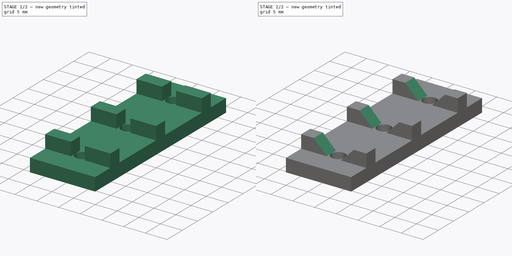
[diagram: build sequence overview — one tinted view per stage of 2, left to right]
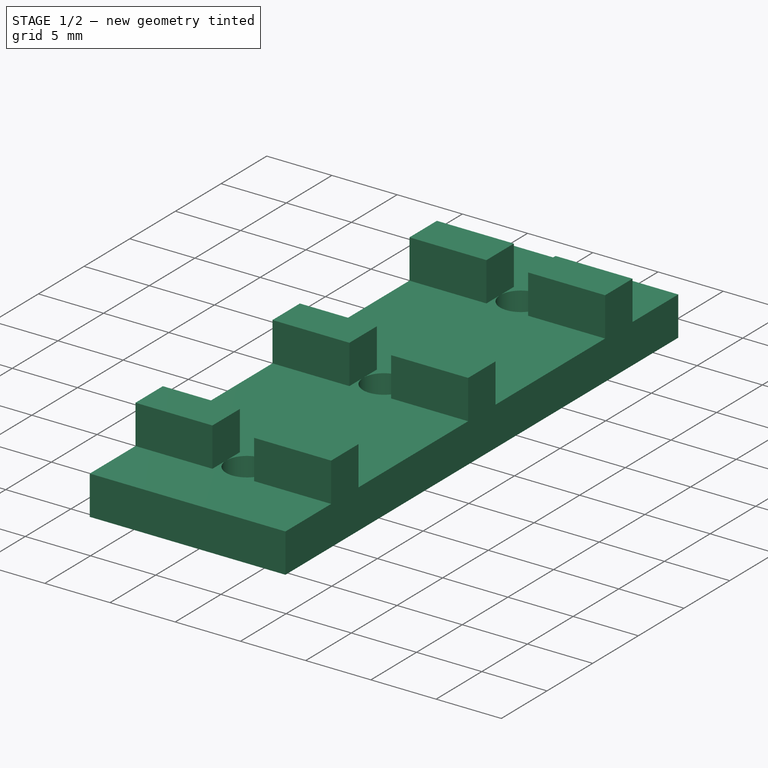
[diagram: stage 1 of 2 — iso view after this stage's code; geometry added in this stage tinted green]
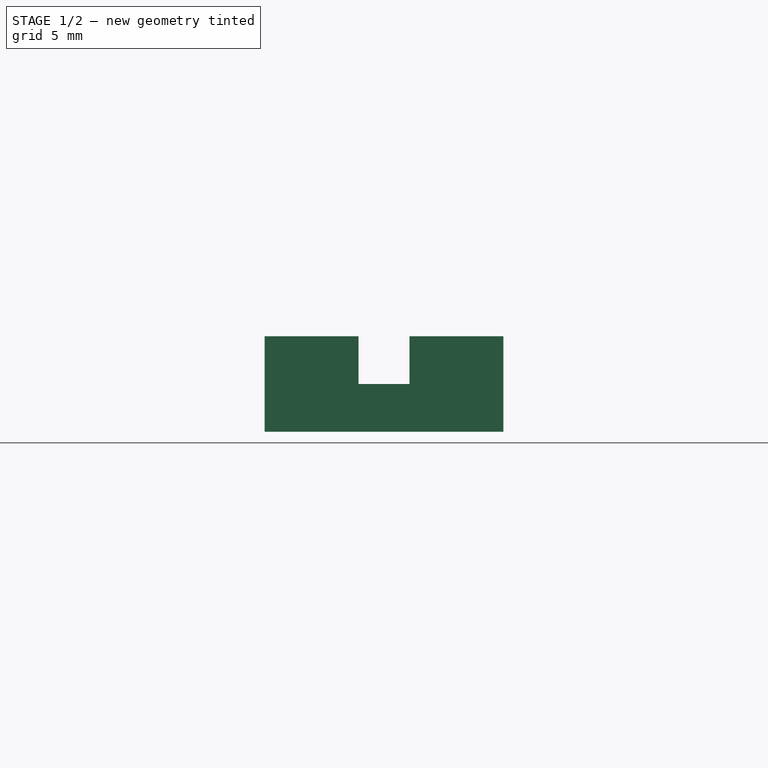
[diagram: stage 1 of 2 — front view after this stage's code; geometry added in this stage tinted green]
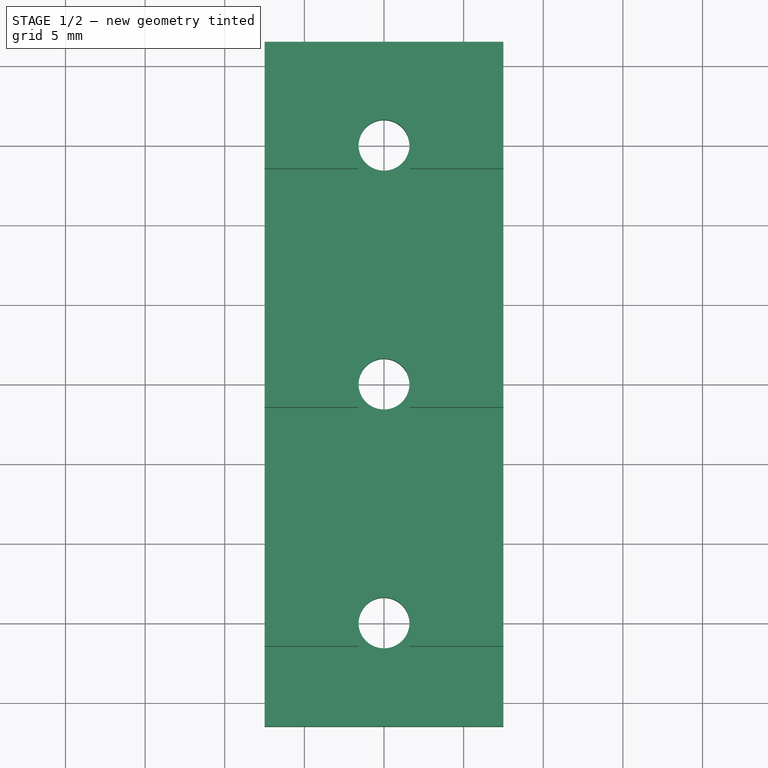
[diagram: stage 1 of 2 — top view after this stage's code; geometry added in this stage tinted green]
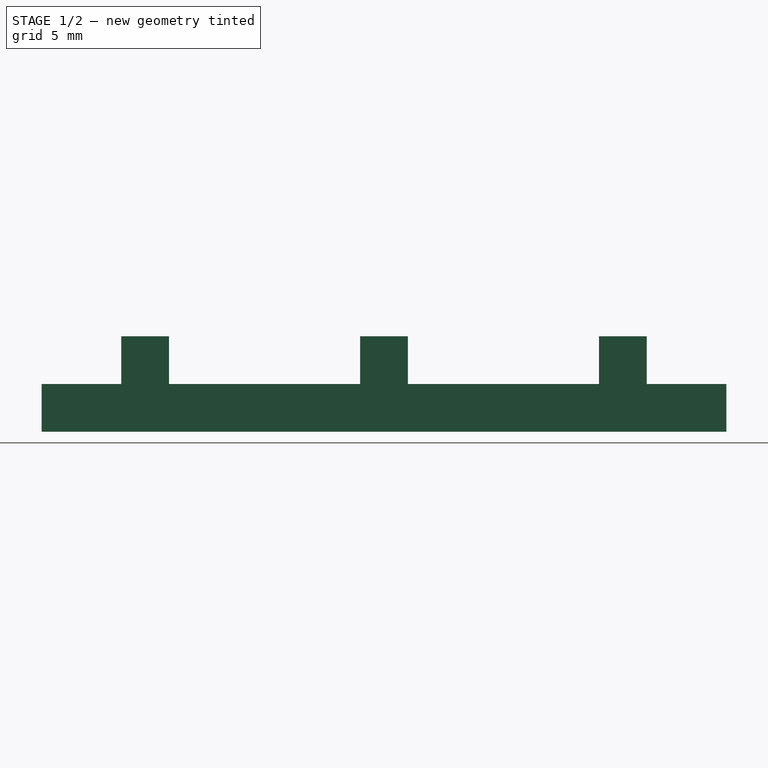
[diagram: stage 1 of 2 — right view after this stage's code; geometry added in this stage tinted green]
FCSTD DOCUMENT  (FreeCAD 0.15R4090 (Git))
Label: Profile_Cutting_Aid
License: CC-BY 3.0
LicenseURL: http://creativecommons.org/licenses/by/3.0/
objects: Sketcher::SketchObject×2, PartDesign::Pad×2, PartDesign::Draft×1
note: 7 computed .brp shape members not serialized (recipe doc carries the construction recipe); baked Part::Feature solids carry a one-line shape summary decoded from their .brp

FEATURE [Sketcher::SketchObject] Sketch
  sketch-geometry (7):
    g0: LineSegment StartX=-7.5 StartY=21.5 StartZ=0 EndX=7.5 EndY=21.5 EndZ=0
    g1: LineSegment StartX=7.5 StartY=21.5 StartZ=0 EndX=7.5 EndY=-21.5 EndZ=0
    g2: LineSegment StartX=7.5 StartY=-21.5 StartZ=0 EndX=-7.5 EndY=-21.5 EndZ=0
    g3: LineSegment StartX=-7.5 StartY=-21.5 StartZ=0 EndX=-7.5 EndY=21.5 EndZ=0
    g4: Circle CenterX=0 CenterY=0 CenterZ=0 NormalX=0 NormalY=0 NormalZ=1 Radius=1.6
    g5: Circle CenterX=0 CenterY=15 CenterZ=0 NormalX=0 NormalY=0 NormalZ=1 Radius=1.6
    g6: Circle CenterX=0 CenterY=-15 CenterZ=0 NormalX=0 NormalY=0 NormalZ=1 Radius=1.6
  constraints (20):
    c: Coincident(g0,g1)
    c: Coincident(g1,g2)
    c: Coincident(g2,g3)
    c: Coincident(g3,g0)
    c: Horizontal(g0)
    c: Horizontal(g2)
    c: Vertical(g1)
    c: Vertical(g3)
    c: Symmetric(g0,g2,g-1)
    c: Symmetric(g0,g0,g-2)
    c: DistanceX(g0) = 15
    c: DistanceY(g1) = -43
    c: Coincident(g4,g-1)
    c: Radius(g4) = 1.6
    c: PointOnObject(g5,g-2)
    c: PointOnObject(g6,g-2)
    c: Symmetric(g6,g5,g-1)
    c: Equal(g6,g5)
    c: Equal(g5,g4)
    c: DistanceY(g5,g6) = -30
FEATURE [PartDesign::Pad] Pad
  Length = 3
  Length2 = 100
  Sketch = -> Sketch
  Type = 0
FEATURE [Sketcher::SketchObject] Sketch001
  ExternalGeometry = -> [Pad]
  Placement = pos=(0,0,3) rot=(0,0,1;0rad)
  Support = -> Pad [Face9]
  sketch-geometry (24):
    g0: LineSegment StartX=-7.5 StartY=1.5 StartZ=0 EndX=-1.6 EndY=1.5 EndZ=0
    g1: LineSegment StartX=-1.6 StartY=1.5 StartZ=0 EndX=-1.6 EndY=-1.5 EndZ=0
    g2: LineSegment StartX=-1.6 StartY=-1.5 StartZ=0 EndX=-7.5 EndY=-1.5 EndZ=0
    g3: LineSegment StartX=-7.5 StartY=-1.5 StartZ=0 EndX=-7.5 EndY=1.5 EndZ=0
    g4: LineSegment StartX=-7.5 StartY=16.5 StartZ=0 EndX=-1.6 EndY=16.5 EndZ=0
    g5: LineSegment StartX=-1.6 StartY=16.5 StartZ=0 EndX=-1.6 EndY=13.5 EndZ=0
    g6: LineSegment StartX=-1.6 StartY=13.5 StartZ=0 EndX=-7.5 EndY=13.5 EndZ=0
    g7: LineSegment StartX=-7.5 StartY=13.5 StartZ=0 EndX=-7.5 EndY=16.5 EndZ=0
    g8: LineSegment StartX=1.6 StartY=16.5 StartZ=0 EndX=7.5 EndY=16.5 EndZ=0
    g9: LineSegment StartX=7.5 StartY=16.5 StartZ=0 EndX=7.5 EndY=13.5 EndZ=0
    g10: LineSegment StartX=7.5 StartY=13.5 StartZ=0 EndX=1.6 EndY=13.5 EndZ=0
    g11: LineSegment StartX=1.6 StartY=13.5 StartZ=0 EndX=1.6 EndY=16.5 EndZ=0
    g12: LineSegment StartX=1.6 StartY=1.5 StartZ=0 EndX=7.5 EndY=1.5 EndZ=0
    g13: LineSegment StartX=7.5 StartY=1.5 StartZ=0 EndX=7.5 EndY=-1.5 EndZ=0
    g14: LineSegment StartX=7.5 StartY=-1.5 StartZ=0 EndX=1.6 EndY=-1.5 EndZ=0
    g15: LineSegment StartX=1.6 StartY=-1.5 StartZ=0 EndX=1.6 EndY=1.5 EndZ=0
    g16: LineSegment StartX=-7.5 StartY=-13.5 StartZ=0 EndX=-1.6 EndY=-13.5 EndZ=0
    g17: LineSegment StartX=-1.6 StartY=-13.5 StartZ=0 EndX=-1.6 EndY=-16.5 EndZ=0
    g18: LineSegment StartX=-1.6 StartY=-16.5 StartZ=0 EndX=-7.5 EndY=-16.5 EndZ=0
    g19: LineSegment StartX=-7.5 StartY=-16.5 StartZ=0 EndX=-7.5 EndY=-13.5 EndZ=0
    g20: LineSegment StartX=1.6 StartY=-13.5 StartZ=0 EndX=7.5 EndY=-13.5 EndZ=0
    g21: LineSegment StartX=7.5 StartY=-13.5 StartZ=0 EndX=7.5 EndY=-16.5 EndZ=0
    g22: LineSegment StartX=7.5 StartY=-16.5 StartZ=0 EndX=1.6 EndY=-16.5 EndZ=0
    g23: LineSegment StartX=1.6 StartY=-16.5 StartZ=0 EndX=1.6 EndY=-13.5 EndZ=0
  constraints (64):
    c: Coincident(g0,g1)
    c: Coincident(g1,g2)
    c: Coincident(g2,g3)
    c: Coincident(g3,g0)
    c: Horizontal(g0)
    c: Horizontal(g2)
    c: Vertical(g1)
    c: Vertical(g3)
    c: PointOnObject(g0,g-3)
    c: Symmetric(g1,g0,g-1)
    c: Tangent(g1,g-4)
    c: DistanceY(g1) = -3
    c: Coincident(g4,g5)
    c: Coincident(g5,g6)
    c: Coincident(g6,g7)
    c: Coincident(g7,g4)
    c: Horizontal(g4)
    c: Horizontal(g6)
    c: Vertical(g5)
    c: Vertical(g7)
    c: Equal(g1,g5)
    c: PointOnObject(g6,g-3)
    c: Tangent(g5,g-5)
    c: DistanceY(g-1,g6) = 13.5
    c: Coincident(g8,g9)
    c: Coincident(g9,g10)
    c: Coincident(g10,g11)
    c: Coincident(g11,g8)
    c: Horizontal(g8)
    c: Horizontal(g10)
    c: Vertical(g9)
    c: Vertical(g11)
    c: Coincident(g12,g13)
    c: Coincident(g13,g14)
    c: Coincident(g14,g15)
    c: Coincident(g15,g12)
    c: Horizontal(g12)
    c: Horizontal(g14)
    c: Vertical(g13)
    c: Vertical(g15)
    c: Symmetric(g2,g13,g-2)
    c: Symmetric(g12,g0,g-2)
    c: Symmetric(g8,g4,g-2)
    c: Symmetric(g6,g9,g-2)
    c: Coincident(g16,g17)
    c: Coincident(g17,g18)
    c: Coincident(g18,g19)
    c: Coincident(g19,g16)
    c: Horizontal(g16)
    c: Horizontal(g18)
    c: Vertical(g17)
    c: Vertical(g19)
    c: Symmetric(g4,g18,g-1)
    c: Symmetric(g16,g5,g-1)
    c: Coincident(g20,g21)
    c: Coincident(g21,g22)
    c: Coincident(g22,g23)
    c: Coincident(g23,g20)
    c: Horizontal(g20)
    c: Horizontal(g22)
    c: Vertical(g21)
    c: Vertical(g23)
    c: Symmetric(g21,g18,g-2)
    c: Symmetric(g16,g20,g-2)
FEATURE [PartDesign::Pad] Pad001
  Length = 3
  Length2 = 100
  Sketch = -> Sketch001
  Type = 0
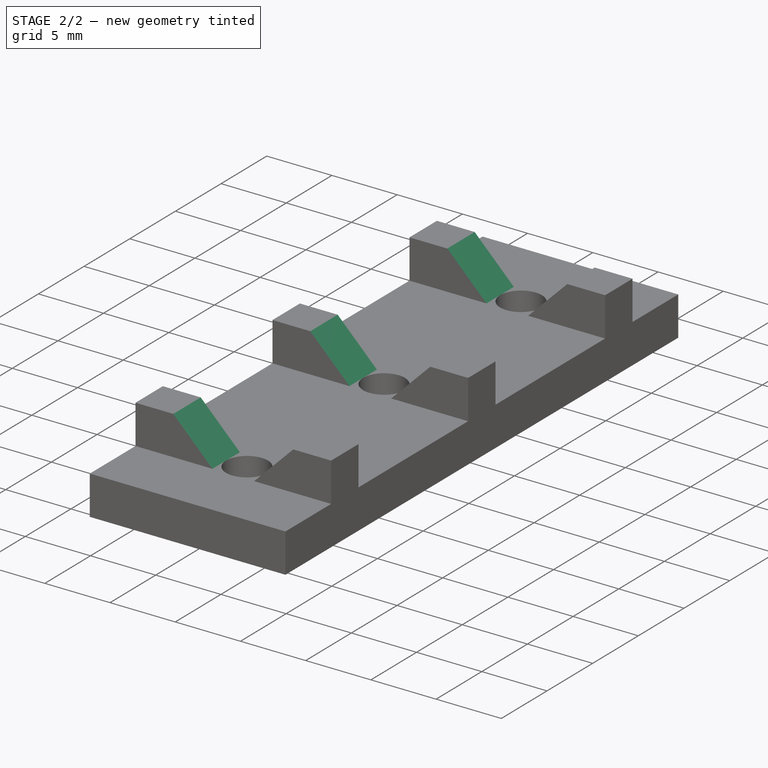
[diagram: stage 2 of 2 — iso view after this stage's code; geometry added in this stage tinted green]
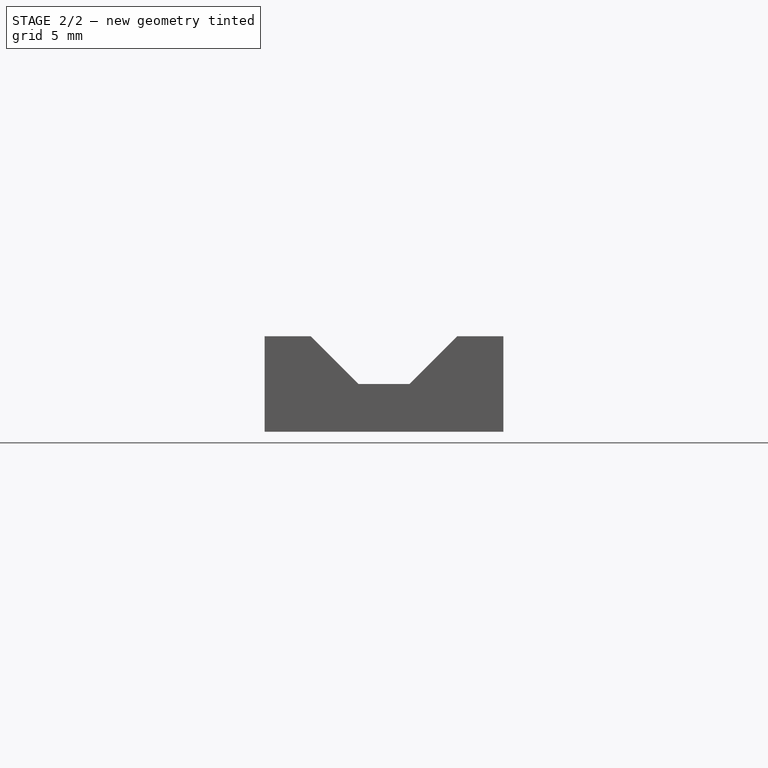
[diagram: stage 2 of 2 — front view after this stage's code; geometry added in this stage tinted green]
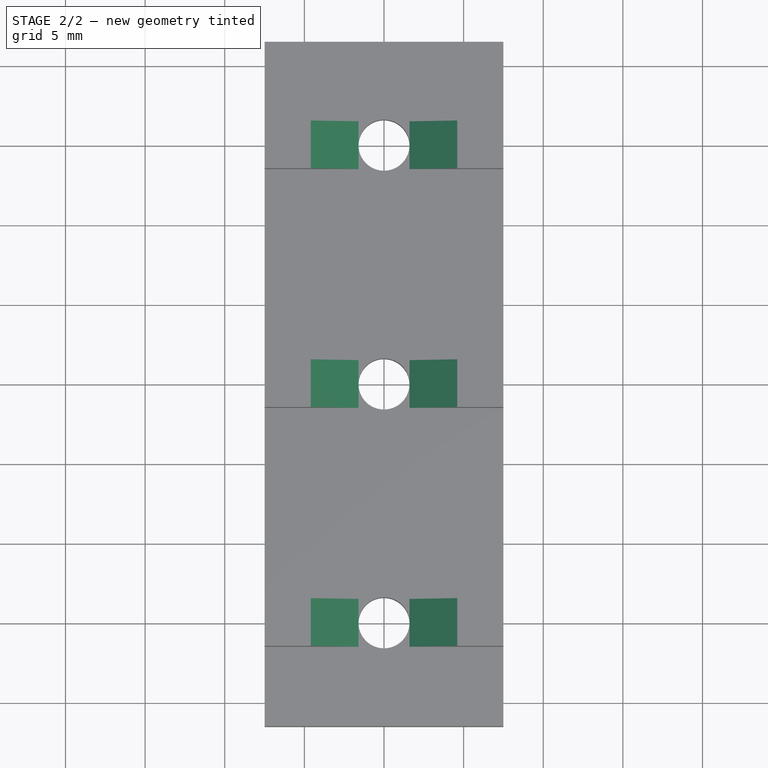
[diagram: stage 2 of 2 — top view after this stage's code; geometry added in this stage tinted green]
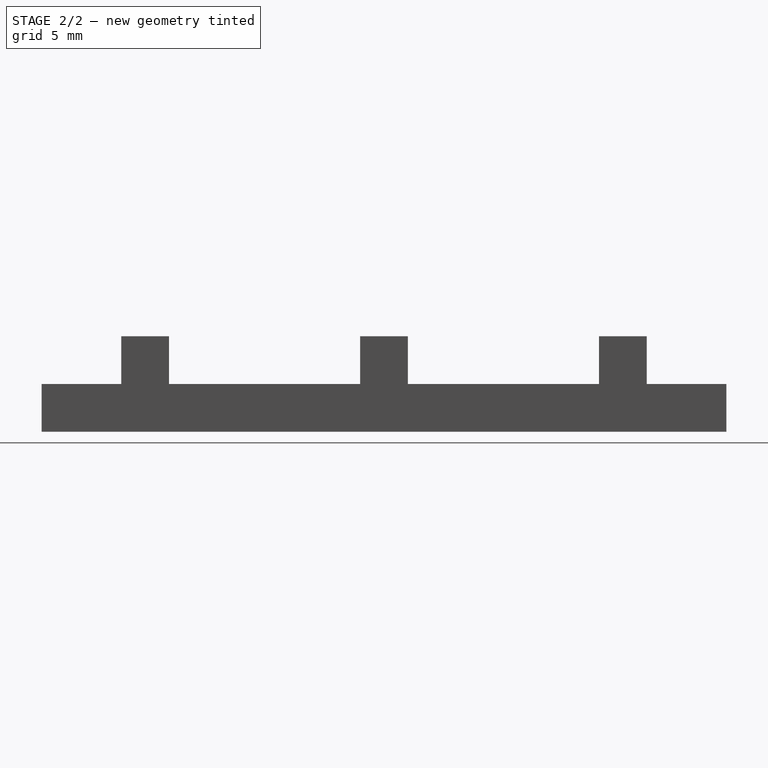
[diagram: stage 2 of 2 — right view after this stage's code; geometry added in this stage tinted green]
FEATURE [PartDesign::Draft] Draft
  Angle = 45
  Base = -> Pad001 [Face25,Face31,Face20,Face24,Face30,Face21]
  NeutralPlane = -> Pad001 [Face9]
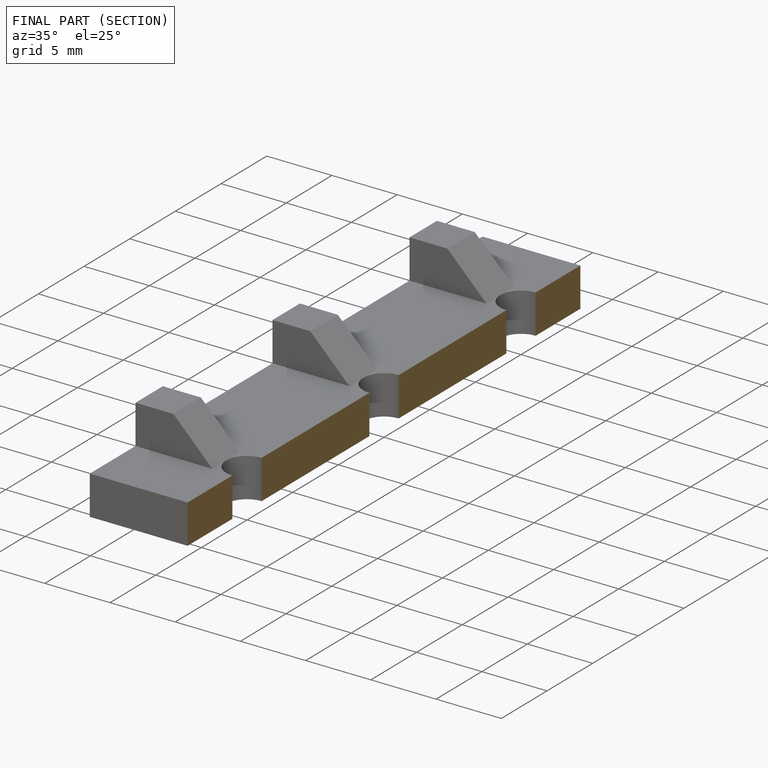
[diagram: finished part — half-section view (interior)]
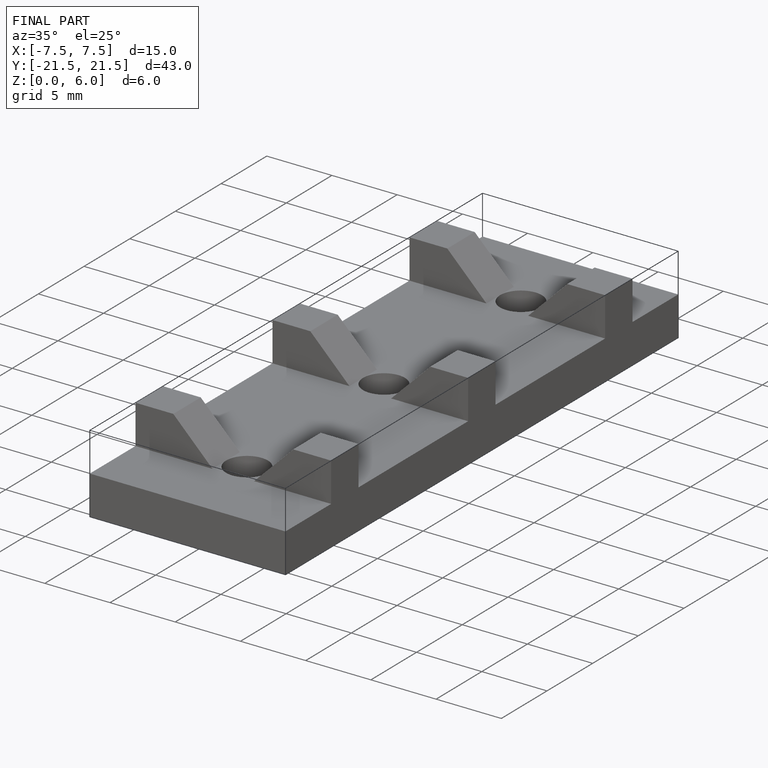
[diagram: finished part — iso view with bounding-box wireframe]
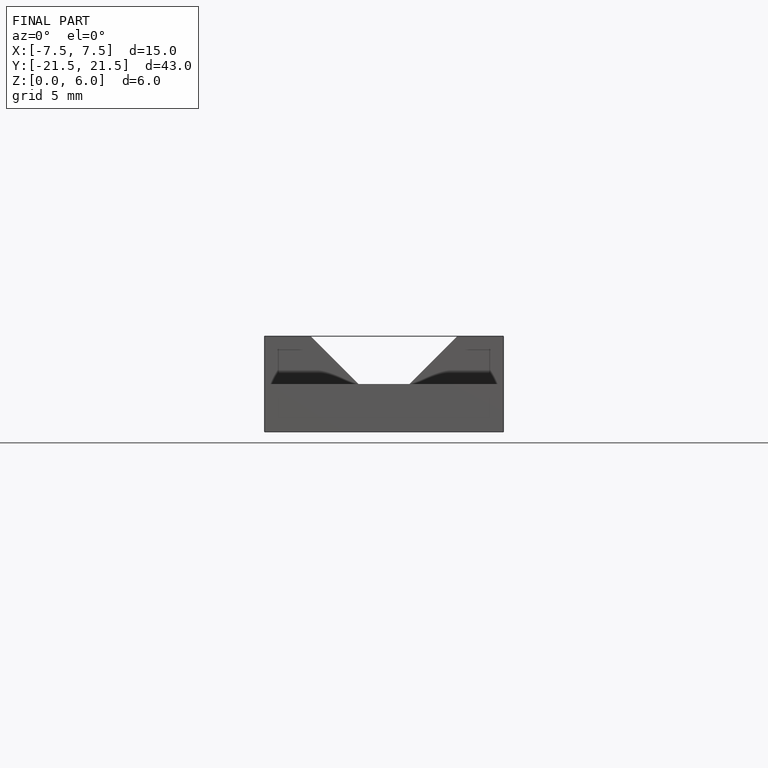
[diagram: finished part — front view with bounding-box wireframe]
